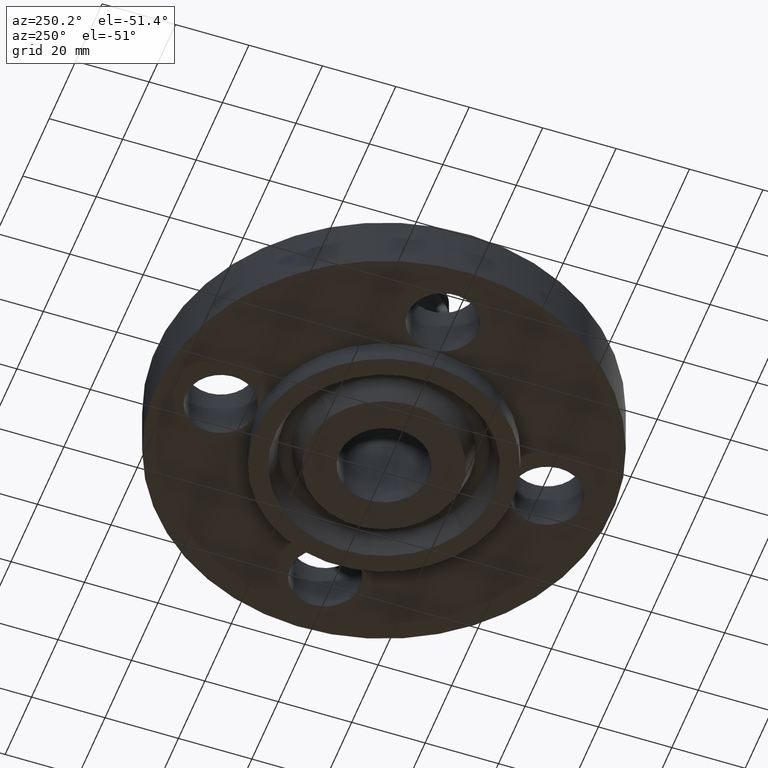
[diagram: clean part render]
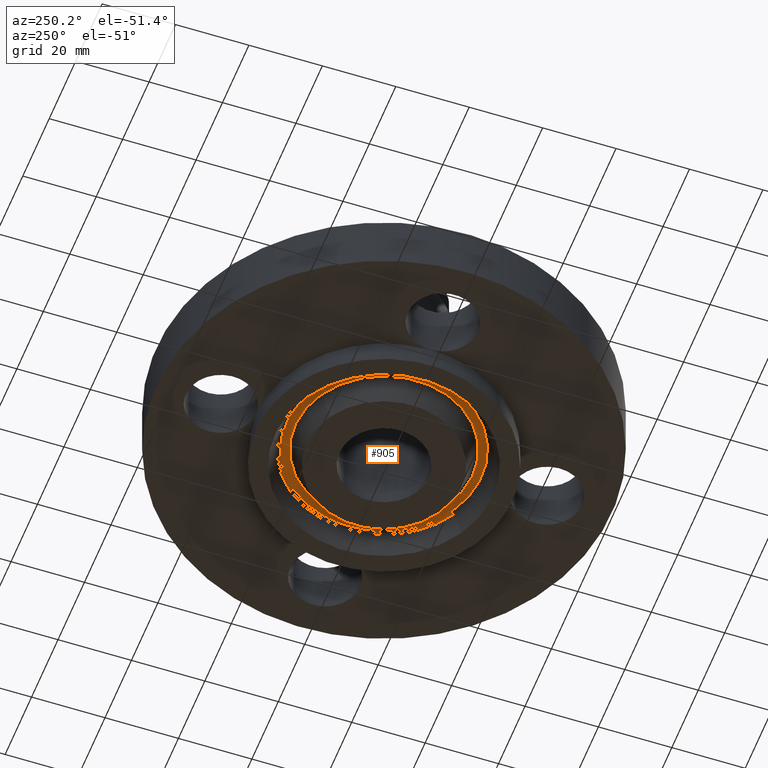
[diagram: same view with one face highlighted and labeled with its STEP entity id]
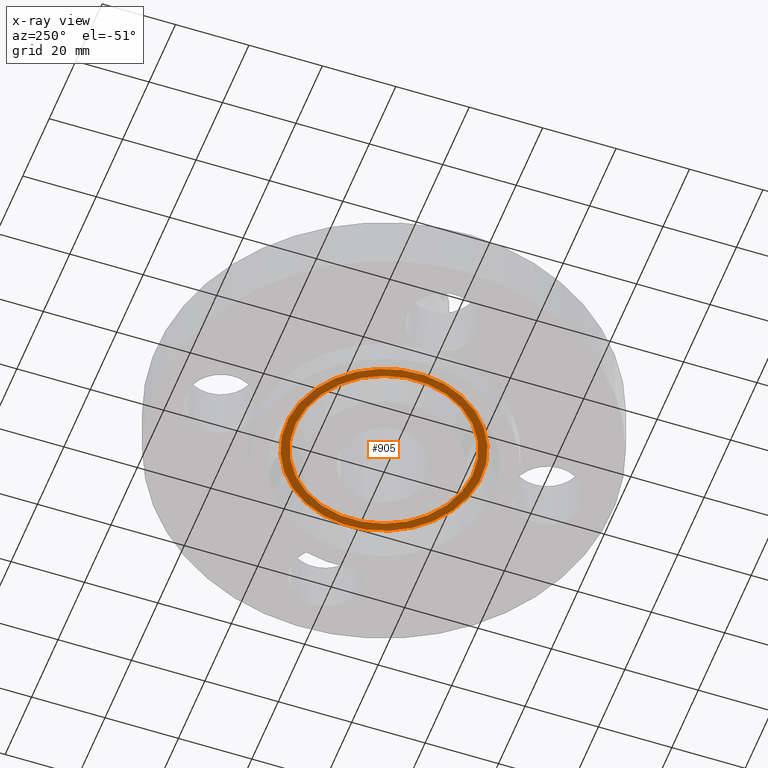
[diagram: x-ray of the same camera — body ghosted, the highlighted face saturated]
A machine part, auxiliary view. The second image highlights one B-rep face of the part: STEP entity #905.
The next image is the same camera in x-ray: the body ghosted, the highlighted face saturated — about 0% of this face is hidden behind the body in this view.
In plain terms, the highlighted planar face has unit normal (0, 0, -1).
Its self-contained STEP definition (entity closure, byte-faithful):
#537=AXIS2_PLACEMENT_3D('Plane Axis2P3D',#534,#535,#536) ;
#827=AXIS2_PLACEMENT_3D('Circle Axis2P3D',#825,#826,$) ;
#873=AXIS2_PLACEMENT_3D('Circle Axis2P3D',#871,#872,$) ;
#889=AXIS2_PLACEMENT_3D('Circle Axis2P3D',#887,#888,$) ;
#898=AXIS2_PLACEMENT_3D('Circle Axis2P3D',#896,#897,$) ;
#534=CARTESIAN_POINT('Axis2P3D Location',(0.,1.37500000001,0.)) ;
#822=CARTESIAN_POINT('Vertex',(-0.501173644308,0.917392202352,-3.0596697529E-017)) ;
#825=CARTESIAN_POINT('Axis2P3D Location',(0.,0.,-3.0596697529E-017)) ;
#829=CARTESIAN_POINT('Vertex',(0.501173644308,-0.917392202352,-3.0596697529E-017)) ;
#871=CARTESIAN_POINT('Axis2P3D Location',(0.,0.,-3.0596697529E-017)) ;
#887=CARTESIAN_POINT('Axis2P3D Location',(0.,0.,0.)) ;
#891=CARTESIAN_POINT('Vertex',(0.457677432904,-0.837772921436,4.37095678986E-017)) ;
#893=CARTESIAN_POINT('Vertex',(-0.457677432904,0.837772921436,4.37095678986E-017)) ;
#896=CARTESIAN_POINT('Axis2P3D Location',(0.,0.,0.)) ;
#535=DIRECTION('Axis2P3D Direction',(0.,0.,-0.0393700787402)) ;
#536=DIRECTION('Axis2P3D XDirection',(0.0393700787402,0.,0.)) ;
#826=DIRECTION('Axis2P3D Direction',(0.,0.,0.0393700787402)) ;
#872=DIRECTION('Axis2P3D Direction',(0.,0.,0.0393700787402)) ;
#888=DIRECTION('Axis2P3D Direction',(0.,0.,-0.0393700787402)) ;
#897=DIRECTION('Axis2P3D Direction',(0.,0.,-0.0393700787402)) ;
#884=ORIENTED_EDGE('',*,*,#831,.F.) ;
#885=ORIENTED_EDGE('',*,*,#875,.F.) ;
#902=ORIENTED_EDGE('',*,*,#895,.T.) ;
#903=ORIENTED_EDGE('',*,*,#900,.T.) ;
#904=FACE_BOUND('',#901,.T.) ;
#905=ADVANCED_FACE('PartBody',(#886,#904),#538,.T.) ;
#828=CIRCLE('generated circle',#827,1.04536284355) ;
#874=CIRCLE('generated circle',#873,1.04536284355) ;
#890=CIRCLE('generated circle',#889,0.954637156453) ;
#899=CIRCLE('generated circle',#898,0.954637156453) ;
#831=EDGE_CURVE('',#823,#830,#828,.T.) ;
#875=EDGE_CURVE('',#830,#823,#874,.T.) ;
#895=EDGE_CURVE('',#892,#894,#890,.F.) ;
#900=EDGE_CURVE('',#894,#892,#899,.F.) ;
#883=EDGE_LOOP('',(#884,#885)) ;
#901=EDGE_LOOP('',(#902,#903)) ;
#886=FACE_OUTER_BOUND('',#883,.T.) ;
#538=PLANE('',#537) ;
#823=VERTEX_POINT('',#822) ;
#830=VERTEX_POINT('',#829) ;
#892=VERTEX_POINT('',#891) ;
#894=VERTEX_POINT('',#893) ;